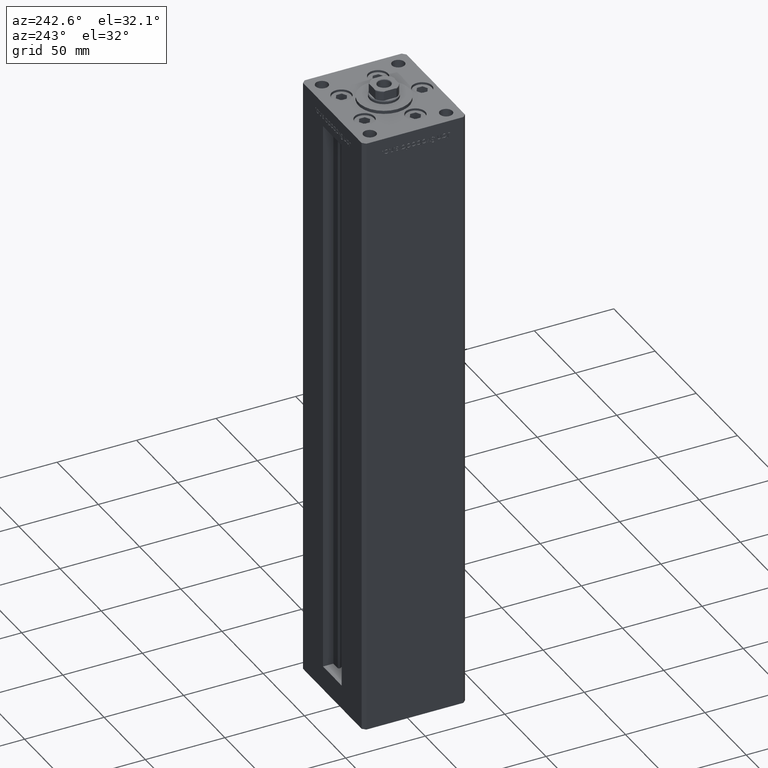
[diagram: clean part render]
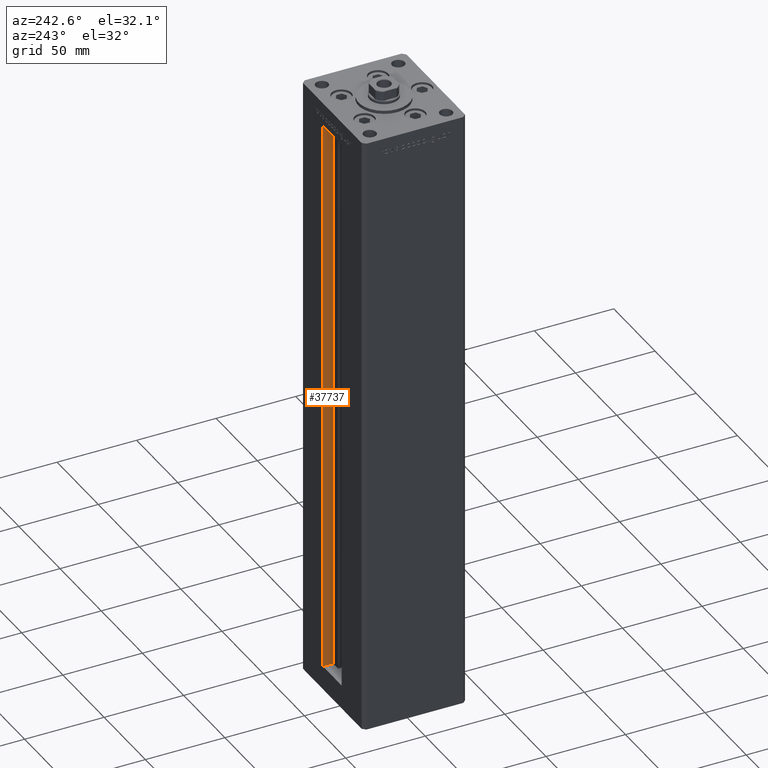
[diagram: same view with one face highlighted and labeled with its STEP entity id]
A machine part, auxiliary view. The second image highlights one B-rep face of the part: STEP entity #37737.
In plain terms, the highlighted planar face has unit normal (1, 0, 0).
Its self-contained STEP definition (entity closure, byte-faithful):
#850 = ORIENTED_EDGE ( 'NONE', *, *, #9881, .F. ) ;
#4386 = ORIENTED_EDGE ( 'NONE', *, *, #18400, .T. ) ;
#4589 = DIRECTION ( 'NONE',  ( 0.000000000000000000, 1.000000000000000000, 0.000000000000000000 ) ) ;
#4725 = VECTOR ( 'NONE', #4589, 1000.000000000000000 ) ;
#5075 = EDGE_LOOP ( 'NONE', ( #850, #9379, #4386, #8357 ) ) ;
#5127 = EDGE_CURVE ( 'NONE', #8433, #9682, #11979, .T. ) ;
#8357 = ORIENTED_EDGE ( 'NONE', *, *, #18847, .F. ) ;
#8433 = VERTEX_POINT ( 'NONE', #24550 ) ;
#9095 = VECTOR ( 'NONE', #26570, 1000.000000000000000 ) ;
#9379 = ORIENTED_EDGE ( 'NONE', *, *, #5127, .F. ) ;
#9682 = VERTEX_POINT ( 'NONE', #16070 ) ;
#9881 = EDGE_CURVE ( 'NONE', #9682, #45112, #35279, .T. ) ;
#11979 = LINE ( 'NONE', #40721, #4725 ) ;
#16070 = CARTESIAN_POINT ( 'NONE',  ( 11.25000000000000178, 32.49999999999999289, 0.000000000000000000 ) ) ;
#18400 = EDGE_CURVE ( 'NONE', #8433, #18503, #49893, .T. ) ;
#18503 = VERTEX_POINT ( 'NONE', #23731 ) ;
#18847 = EDGE_CURVE ( 'NONE', #45112, #18503, #29872, .T. ) ;
#23488 = FACE_OUTER_BOUND ( 'NONE', #5075, .T. ) ;
#23731 = CARTESIAN_POINT ( 'NONE',  ( 11.25000000000000178, 25.99999999999999289, 356.0000000000000000 ) ) ;
#23747 = DIRECTION ( 'NONE',  ( 0.000000000000000000, 0.000000000000000000, -1.000000000000000000 ) ) ;
#24550 = CARTESIAN_POINT ( 'NONE',  ( 11.25000000000000178, 25.99999999999999289, 0.000000000000000000 ) ) ;
#26570 = DIRECTION ( 'NONE',  ( -0.000000000000000000, -0.000000000000000000, 1.000000000000000000 ) ) ;
#27785 = CARTESIAN_POINT ( 'NONE',  ( 11.24999999999999467, 32.49999999999999289, 356.0000000000000000 ) ) ;
#29872 = LINE ( 'NONE', #49940, #46429 ) ;
#35109 = DIRECTION ( 'NONE',  ( 1.000000000000000000, -0.000000000000000000, 0.000000000000000000 ) ) ;
#35279 = LINE ( 'NONE', #39221, #9095 ) ;
#37737 = ADVANCED_FACE ( 'NONE', ( #23488 ), #43792, .F. ) ;
#38248 = CARTESIAN_POINT ( 'NONE',  ( 11.25000000000000178, 25.99999999999999289, 0.000000000000000000 ) ) ;
#39221 = CARTESIAN_POINT ( 'NONE',  ( 11.25000000000000178, 32.49999999999999289, 0.000000000000000000 ) ) ;
#39574 = CARTESIAN_POINT ( 'NONE',  ( 11.25000000000000178, 25.99999999999999289, 0.000000000000000000 ) ) ;
#40721 = CARTESIAN_POINT ( 'NONE',  ( 11.25000000000000178, 25.99999999999999289, 0.000000000000000000 ) ) ;
#41996 = DIRECTION ( 'NONE',  ( -0.000000000000000000, -1.000000000000000000, 0.000000000000000000 ) ) ;
#42586 = AXIS2_PLACEMENT_3D ( 'NONE', #39574, #35109, #23747 ) ;
#42737 = DIRECTION ( 'NONE',  ( -0.000000000000000000, -0.000000000000000000, 1.000000000000000000 ) ) ;
#43792 = PLANE ( 'NONE',  #42586 ) ;
#45112 = VERTEX_POINT ( 'NONE', #27785 ) ;
#46429 = VECTOR ( 'NONE', #41996, 1000.000000000000000 ) ;
#49785 = VECTOR ( 'NONE', #42737, 1000.000000000000000 ) ;
#49893 = LINE ( 'NONE', #38248, #49785 ) ;
#49940 = CARTESIAN_POINT ( 'NONE',  ( 11.25000000000000178, 0.000000000000000000, 356.0000000000000000 ) ) ;